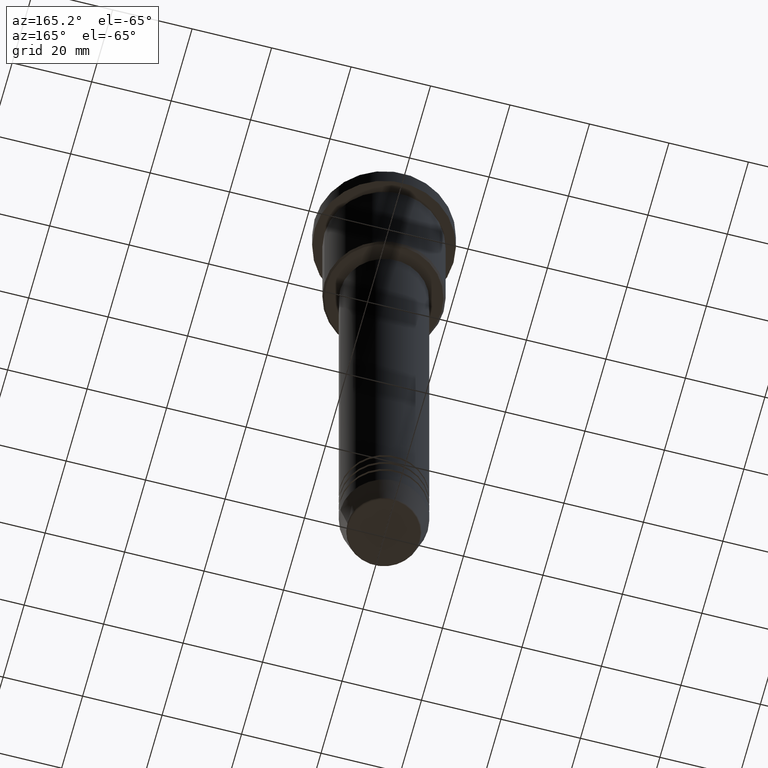
[diagram: clean part render]
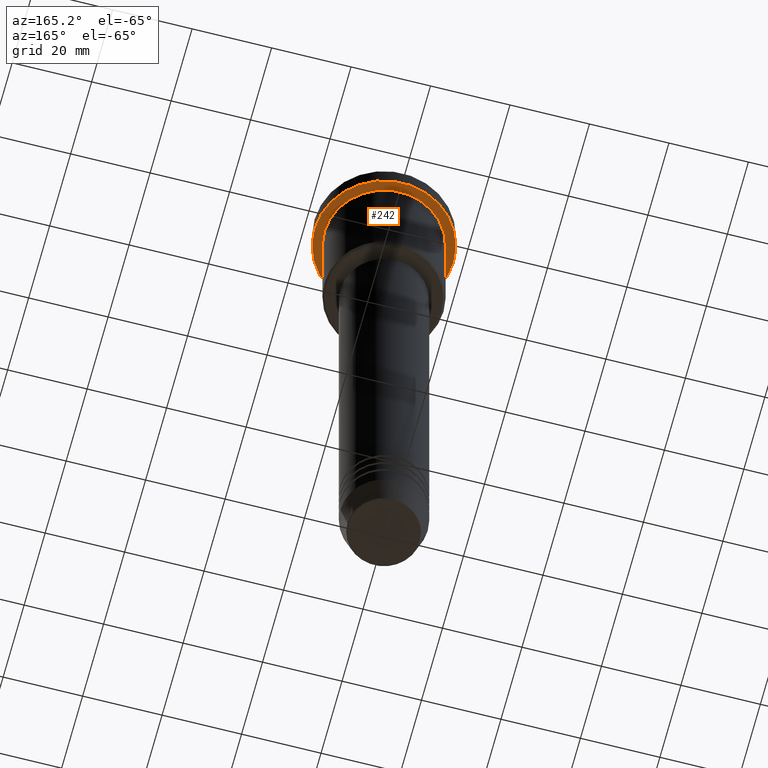
[diagram: same view with one face highlighted and labeled with its STEP entity id]
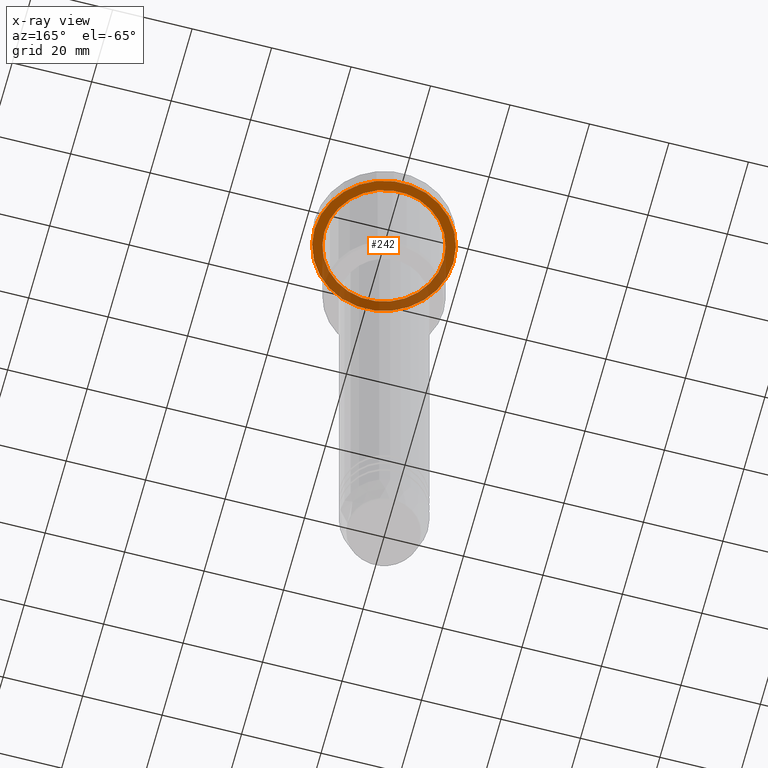
[diagram: x-ray of the same camera — body ghosted, the highlighted face saturated]
A machine part, auxiliary view. The second image highlights one B-rep face of the part: STEP entity #242.
The next image is the same camera in x-ray: the body ghosted, the highlighted face saturated — about 37% of this face is hidden behind the body in this view.
In plain terms, the highlighted planar face has unit normal (0, 0, -1).
Its self-contained STEP definition (entity closure, byte-faithful):
#19 = EDGE_CURVE ( 'NONE', #436, #1152, #511, .T. ) ;
#31 = CARTESIAN_POINT ( 'NONE',  ( 0.000000000000000000, 0.000000000000000000, -5.999999999999995559 ) ) ;
#101 = DIRECTION ( 'NONE',  ( -1.000000000000000000, 0.000000000000000000, -0.000000000000000000 ) ) ;
#122 = CARTESIAN_POINT ( 'NONE',  ( 0.000000000000000000, 0.000000000000000000, -5.999999999999995559 ) ) ;
#129 = VERTEX_POINT ( 'NONE', #1004 ) ;
#184 = ORIENTED_EDGE ( 'NONE', *, *, #323, .T. ) ;
#201 = DIRECTION ( 'NONE',  ( -1.000000000000000000, 0.000000000000000000, 0.000000000000000000 ) ) ;
#242 = ADVANCED_FACE ( 'NONE', ( #383, #577 ), #922, .T. ) ;
#245 = DIRECTION ( 'NONE',  ( -1.000000000000000000, 0.000000000000000000, 0.000000000000000000 ) ) ;
#246 = ORIENTED_EDGE ( 'NONE', *, *, #682, .T. ) ;
#255 = AXIS2_PLACEMENT_3D ( 'NONE', #833, #1112, #101 ) ;
#305 = DIRECTION ( 'NONE',  ( -0.000000000000000000, -0.000000000000000000, 1.000000000000000000 ) ) ;
#318 = ORIENTED_EDGE ( 'NONE', *, *, #651, .F. ) ;
#323 = EDGE_CURVE ( 'NONE', #500, #129, #823, .T. ) ;
#339 = ORIENTED_EDGE ( 'NONE', *, *, #19, .F. ) ;
#340 = DIRECTION ( 'NONE',  ( 1.000000000000000000, 0.000000000000000000, 0.000000000000000000 ) ) ;
#347 = AXIS2_PLACEMENT_3D ( 'NONE', #1058, #1140, #245 ) ;
#383 = FACE_BOUND ( 'NONE', #820, .T. ) ;
#403 = AXIS2_PLACEMENT_3D ( 'NONE', #122, #732, #1015 ) ;
#436 = VERTEX_POINT ( 'NONE', #1053 ) ;
#471 = AXIS2_PLACEMENT_3D ( 'NONE', #1119, #305, #340 ) ;
#500 = VERTEX_POINT ( 'NONE', #971 ) ;
#511 = CIRCLE ( 'NONE', #471, 17.50000000000000000 ) ;
#572 = AXIS2_PLACEMENT_3D ( 'NONE', #31, #1007, #201 ) ;
#577 = FACE_OUTER_BOUND ( 'NONE', #939, .T. ) ;
#651 = EDGE_CURVE ( 'NONE', #1152, #436, #660, .T. ) ;
#660 = CIRCLE ( 'NONE', #403, 17.50000000000000000 ) ;
#682 = EDGE_CURVE ( 'NONE', #129, #500, #1029, .T. ) ;
#732 = DIRECTION ( 'NONE',  ( -0.000000000000000000, -0.000000000000000000, 1.000000000000000000 ) ) ;
#820 = EDGE_LOOP ( 'NONE', ( #246, #184 ) ) ;
#823 = CIRCLE ( 'NONE', #347, 15.00000000000000000 ) ;
#833 = CARTESIAN_POINT ( 'NONE',  ( 0.000000000000000000, 17.50000000000000000, -5.999999999999995559 ) ) ;
#922 = PLANE ( 'NONE',  #255 ) ;
#939 = EDGE_LOOP ( 'NONE', ( #318, #339 ) ) ;
#971 = CARTESIAN_POINT ( 'NONE',  ( 15.00000000000000000, 1.836970198721029589E-15, -5.999999999999994671 ) ) ;
#1004 = CARTESIAN_POINT ( 'NONE',  ( -15.00000000000000000, 0.000000000000000000, -5.999999999999994671 ) ) ;
#1007 = DIRECTION ( 'NONE',  ( -0.000000000000000000, -0.000000000000000000, 1.000000000000000000 ) ) ;
#1015 = DIRECTION ( 'NONE',  ( 1.000000000000000000, 0.000000000000000000, 0.000000000000000000 ) ) ;
#1029 = CIRCLE ( 'NONE', #572, 15.00000000000000000 ) ;
#1053 = CARTESIAN_POINT ( 'NONE',  ( -17.50000000000000000, 2.143131898507868248E-15, -5.999999999999995559 ) ) ;
#1058 = CARTESIAN_POINT ( 'NONE',  ( 0.000000000000000000, 0.000000000000000000, -5.999999999999995559 ) ) ;
#1112 = DIRECTION ( 'NONE',  ( 0.000000000000000000, 0.000000000000000000, -1.000000000000000000 ) ) ;
#1115 = CARTESIAN_POINT ( 'NONE',  ( 17.50000000000000000, 0.000000000000000000, -5.999999999999995559 ) ) ;
#1119 = CARTESIAN_POINT ( 'NONE',  ( 0.000000000000000000, 0.000000000000000000, -5.999999999999995559 ) ) ;
#1140 = DIRECTION ( 'NONE',  ( -0.000000000000000000, -0.000000000000000000, 1.000000000000000000 ) ) ;
#1152 = VERTEX_POINT ( 'NONE', #1115 ) ;